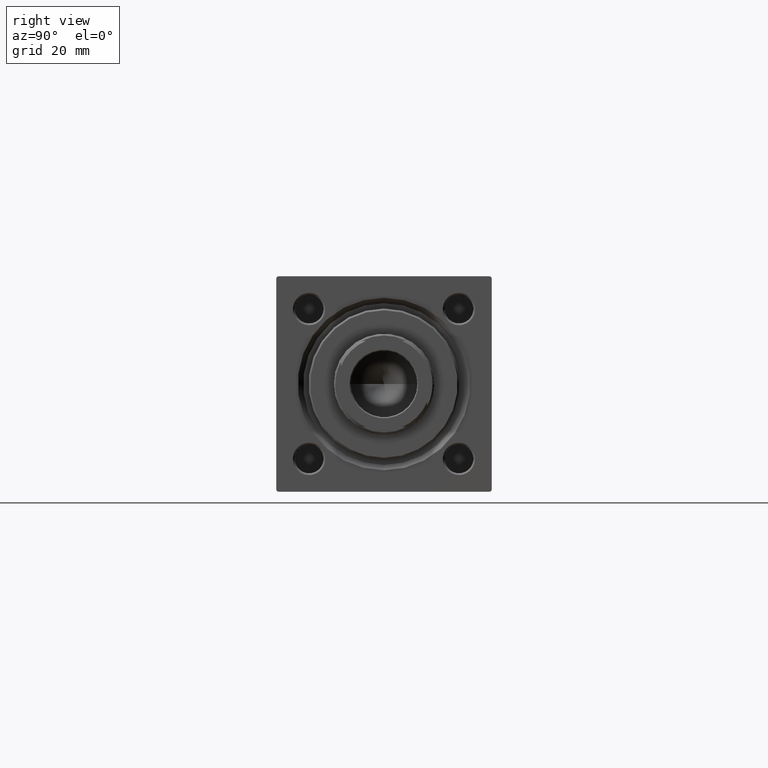
[diagram: clean part render]
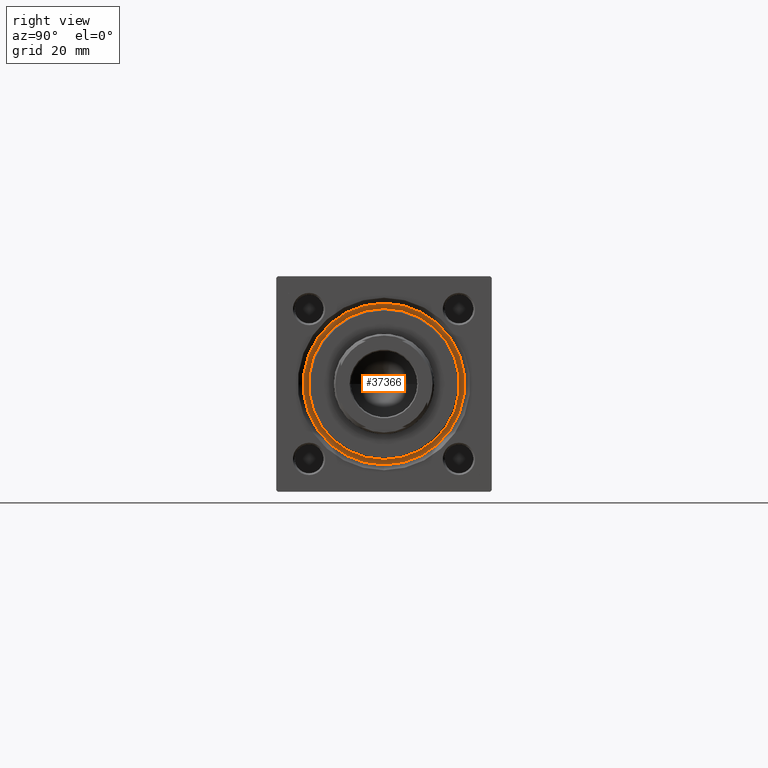
[diagram: same view with one face highlighted and labeled with its STEP entity id]
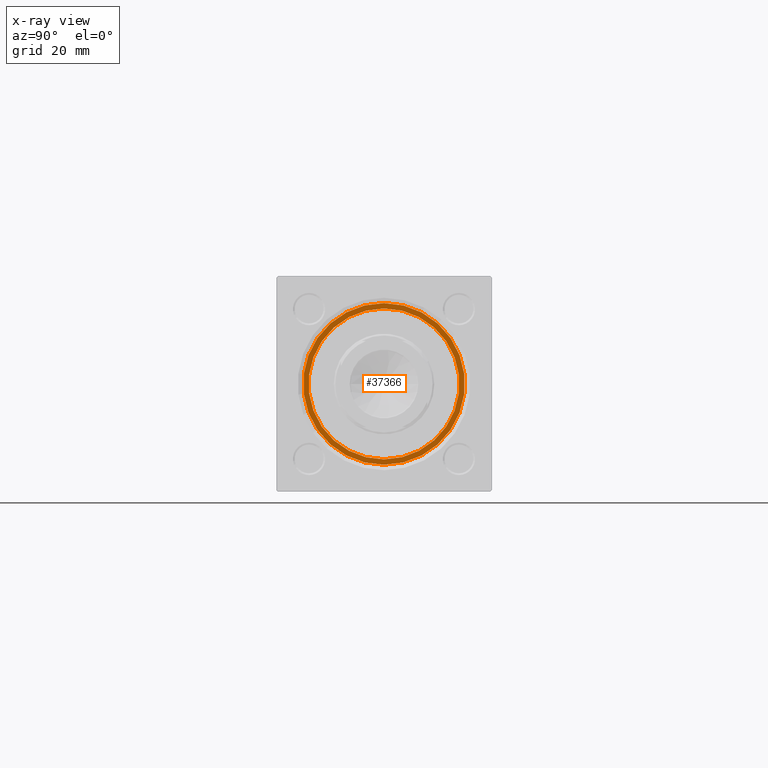
[diagram: x-ray of the same camera — body ghosted, the highlighted face saturated]
A machine part, right view. The second image highlights one B-rep face of the part: STEP entity #37366.
The next image is the same camera in x-ray: the body ghosted, the highlighted face saturated — about 0% of this face is hidden behind the body in this view.
In plain terms, the highlighted planar face has unit normal (1, 0, 0).
Its self-contained STEP definition (entity closure, byte-faithful):
#751 = ORIENTED_EDGE ( 'NONE', *, *, #20618, .T. ) ;
#1046 = DIRECTION ( 'NONE',  ( 1.000000000000000000, 0.000000000000000000, 0.000000000000000000 ) ) ;
#1977 = AXIS2_PLACEMENT_3D ( 'NONE', #24177, #20880, #36359 ) ;
#3665 = AXIS2_PLACEMENT_3D ( 'NONE', #17043, #24409, #1046 ) ;
#4599 = CARTESIAN_POINT ( 'NONE',  ( 0.000000000000000000, 0.000000000000000000, 28.69999999999999929 ) ) ;
#5355 = DIRECTION ( 'NONE',  ( 0.000000000000000000, 0.000000000000000000, 1.000000000000000000 ) ) ;
#11223 = VERTEX_POINT ( 'NONE', #28783 ) ;
#12567 = CIRCLE ( 'NONE', #3665, 22.50000000000000355 ) ;
#13262 = PLANE ( 'NONE',  #1977 ) ;
#13362 = DIRECTION ( 'NONE',  ( 0.000000000000000000, 0.000000000000000000, 1.000000000000000000 ) ) ;
#14766 = ORIENTED_EDGE ( 'NONE', *, *, #18902, .F. ) ;
#14966 = CIRCLE ( 'NONE', #21454, 21.00000000000000000 ) ;
#17043 = CARTESIAN_POINT ( 'NONE',  ( 0.000000000000000000, 0.000000000000000000, 28.69999999999999929 ) ) ;
#18902 = EDGE_CURVE ( 'NONE', #30976, #22900, #14966, .T. ) ;
#19624 = EDGE_CURVE ( 'NONE', #22900, #30976, #41256, .T. ) ;
#20618 = EDGE_CURVE ( 'NONE', #11223, #42695, #33226, .T. ) ;
#20880 = DIRECTION ( 'NONE',  ( 0.000000000000000000, 0.000000000000000000, 1.000000000000000000 ) ) ;
#21454 = AXIS2_PLACEMENT_3D ( 'NONE', #4599, #5355, #47489 ) ;
#21877 = AXIS2_PLACEMENT_3D ( 'NONE', #26728, #42200, #45527 ) ;
#22900 = VERTEX_POINT ( 'NONE', #40598 ) ;
#24177 = CARTESIAN_POINT ( 'NONE',  ( 0.000000000000000000, 0.000000000000000000, 28.69999999999999929 ) ) ;
#24409 = DIRECTION ( 'NONE',  ( 0.000000000000000000, 0.000000000000000000, 1.000000000000000000 ) ) ;
#25791 = CARTESIAN_POINT ( 'NONE',  ( 0.000000000000000000, 0.000000000000000000, 28.69999999999999929 ) ) ;
#25813 = EDGE_LOOP ( 'NONE', ( #751, #36950 ) ) ;
#26728 = CARTESIAN_POINT ( 'NONE',  ( 0.000000000000000000, 0.000000000000000000, 28.69999999999999929 ) ) ;
#28482 = FACE_BOUND ( 'NONE', #42855, .T. ) ;
#28783 = CARTESIAN_POINT ( 'NONE',  ( -22.50000000000000355, 0.000000000000000000, 28.69999999999999929 ) ) ;
#28851 = DIRECTION ( 'NONE',  ( 1.000000000000000000, 0.000000000000000000, 0.000000000000000000 ) ) ;
#29726 = CARTESIAN_POINT ( 'NONE',  ( 21.00000000000000000, 2.571758278209441661E-15, 28.69999999999999929 ) ) ;
#30976 = VERTEX_POINT ( 'NONE', #29726 ) ;
#31791 = FACE_OUTER_BOUND ( 'NONE', #25813, .T. ) ;
#33226 = CIRCLE ( 'NONE', #21877, 22.50000000000000355 ) ;
#35592 = CARTESIAN_POINT ( 'NONE',  ( 22.50000000000000355, 2.755455298081545172E-15, 28.69999999999999929 ) ) ;
#36359 = DIRECTION ( 'NONE',  ( 1.000000000000000000, 0.000000000000000000, -0.000000000000000000 ) ) ;
#36950 = ORIENTED_EDGE ( 'NONE', *, *, #39573, .T. ) ;
#37366 = ADVANCED_FACE ( 'NONE', ( #28482, #31791 ), #13262, .T. ) ;
#39573 = EDGE_CURVE ( 'NONE', #42695, #11223, #12567, .T. ) ;
#39640 = AXIS2_PLACEMENT_3D ( 'NONE', #25791, #13362, #28851 ) ;
#40598 = CARTESIAN_POINT ( 'NONE',  ( -21.00000000000000000, 0.000000000000000000, 28.69999999999999929 ) ) ;
#41256 = CIRCLE ( 'NONE', #39640, 21.00000000000000000 ) ;
#42200 = DIRECTION ( 'NONE',  ( 0.000000000000000000, 0.000000000000000000, 1.000000000000000000 ) ) ;
#42695 = VERTEX_POINT ( 'NONE', #35592 ) ;
#42855 = EDGE_LOOP ( 'NONE', ( #48581, #14766 ) ) ;
#45527 = DIRECTION ( 'NONE',  ( 1.000000000000000000, 0.000000000000000000, 0.000000000000000000 ) ) ;
#47489 = DIRECTION ( 'NONE',  ( 1.000000000000000000, 0.000000000000000000, 0.000000000000000000 ) ) ;
#48581 = ORIENTED_EDGE ( 'NONE', *, *, #19624, .F. ) ;